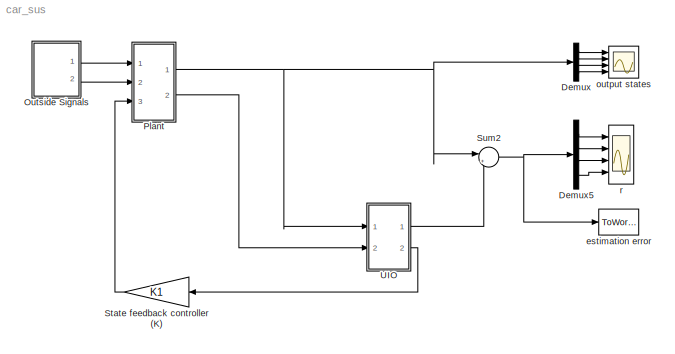
MODEL car_sus
KIND model
BLOCK [Demux] Demux
  DisplayOption = bar
  Ports = [1, 4]
  SID = 9
BLOCK [Demux] Demux5
  DisplayOption = bar
  Ports = [1, 4]
  SID = 14
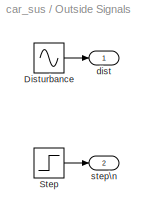
BLOCK [SubSystem] Outside Signals
  Ports = [0, 2]
  RequestExecContextInheritance = off
  SID = 15
BLOCK [Sin] Outside Signals/Disturbance
  Frequency = 100
  Ports = [0, 1]
  SID = 18
  SampleTime = 0
BLOCK [Step] Outside Signals/Step
  SID = 19
  SampleTime = 0
  Time = 0
BLOCK [Outport] Outside Signals/dist
  IconDisplay = Port number
  SID = 21
BLOCK [Outport] Outside Signals/step\n
  IconDisplay = Port number
  Port = 2
  SID = 23
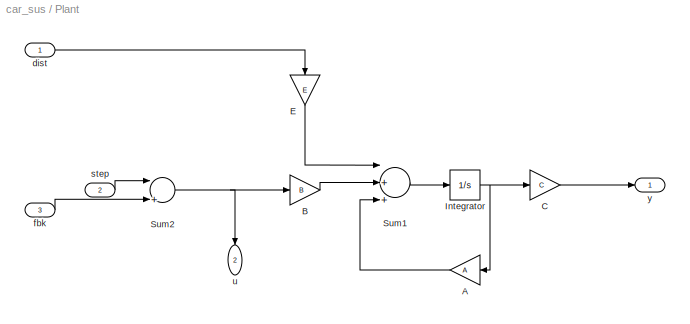
BLOCK [SubSystem] Plant
  Ports = [3, 2]
  RequestExecContextInheritance = off
  SID = 24
BLOCK [Gain] Plant/A
  Gain = A
  Multiplication = Matrix(K*u)
  OutDataTypeStr = Inherit: Inherit via internal rule
  ParamDataTypeStr = Inherit: Inherit via internal rule
  SID = 30
  SaturateOnIntegerOverflow = off
BLOCK [Gain] Plant/B
  Gain = B
  Multiplication = Matrix(K*u)
  OutDataTypeStr = Inherit: Inherit via internal rule
  ParamDataTypeStr = Inherit: Inherit via internal rule
  SID = 31
  SaturateOnIntegerOverflow = off
BLOCK [Gain] Plant/C
  Gain = C
  Multiplication = Matrix(K*u)
  OutDataTypeStr = Inherit: Inherit via internal rule
  ParamDataTypeStr = Inherit: Inherit via internal rule
  SID = 32
  SaturateOnIntegerOverflow = off
BLOCK [Gain] Plant/E
  Gain = E
  Multiplication = Matrix(K*u)
  OutDataTypeStr = Inherit: Inherit via internal rule
  ParamDataTypeStr = Inherit: Inherit via internal rule
  SID = 33
  SaturateOnIntegerOverflow = off
BLOCK [Integrator] Plant/Integrator
  InitialCondition = X_0
  Ports = [1, 1]
  SID = 34
BLOCK [Sum] Plant/Sum1
  InputSameDT = off
  Inputs = |+++
  OutDataTypeStr = Inherit: Inherit via internal rule
  Ports = [3, 1]
  SID = 35
  SaturateOnIntegerOverflow = off
BLOCK [Sum] Plant/Sum2
  InputSameDT = off
  Inputs = |+-
  OutDataTypeStr = Inherit: Inherit via internal rule
  Ports = [2, 1]
  SID = 36
  SaturateOnIntegerOverflow = off
BLOCK [Inport] Plant/dist
  IconDisplay = Port number
  SID = 26
BLOCK [Inport] Plant/fbk
  IconDisplay = Port number
  Port = 3
  SID = 29
BLOCK [Inport] Plant/step
  IconDisplay = Port number
  Port = 2
  SID = 28
BLOCK [Outport] Plant/u
  IconDisplay = Port number
  Port = 2
  SID = 40
BLOCK [Outport] Plant/y
  IconDisplay = Port number
  SID = 39
BLOCK [Gain] State feedback controller (K)
  Gain = K1
  Multiplication = Matrix(K*u)
  OutDataTypeStr = Inherit: Inherit via internal rule
  ParamDataTypeStr = Inherit: Inherit via internal rule
  SID = 41
  SaturateOnIntegerOverflow = off
BLOCK [Sum] Sum2
  IconShape = round
  InputSameDT = off
  Inputs = |+-
  OutDataTypeStr = Inherit: Inherit via internal rule
  Ports = [2, 1]
  SID = 45
  SaturateOnIntegerOverflow = off
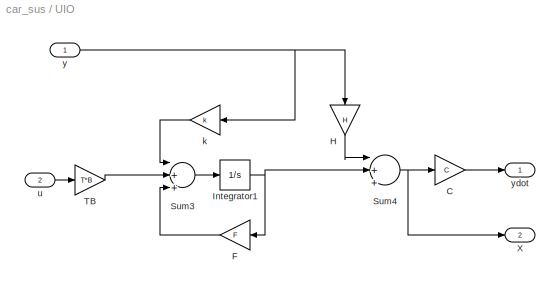
BLOCK [SubSystem] UIO
  Ports = [2, 2]
  RequestExecContextInheritance = off
  SID = 48
BLOCK [Gain] UIO/C
  Gain = C
  Multiplication = Matrix(K*u)
  OutDataTypeStr = Inherit: Inherit via internal rule
  ParamDataTypeStr = Inherit: Inherit via internal rule
  SID = 51
  SaturateOnIntegerOverflow = off
BLOCK [Gain] UIO/F
  Gain = F
  Multiplication = Matrix(K*u)
  OutDataTypeStr = Inherit: Inherit via internal rule
  ParamDataTypeStr = Inherit: Inherit via internal rule
  SID = 52
  SaturateOnIntegerOverflow = off
BLOCK [Gain] UIO/H
  Gain = H
  Multiplication = Matrix(K*u)
  OutDataTypeStr = Inherit: Inherit via internal rule
  ParamDataTypeStr = Inherit: Inherit via internal rule
  SID = 53
  SaturateOnIntegerOverflow = off
BLOCK [Integrator] UIO/Integrator1
  Ports = [1, 1]
  SID = 54
BLOCK [Sum] UIO/Sum3
  InputSameDT = off
  Inputs = |+++
  OutDataTypeStr = Inherit: Inherit via internal rule
  Ports = [3, 1]
  SID = 56
  SaturateOnIntegerOverflow = off
BLOCK [Sum] UIO/Sum4
  InputSameDT = off
  Inputs = |+++
  OutDataTypeStr = Inherit: Inherit via internal rule
  Ports = [3, 1]
  SID = 57
  SaturateOnIntegerOverflow = off
BLOCK [Gain] UIO/TB
  Gain = T*B
  Multiplication = Matrix(K*u)
  OutDataTypeStr = Inherit: Inherit via internal rule
  ParamDataTypeStr = Inherit: Inherit via internal rule
  SID = 58
  SaturateOnIntegerOverflow = off
BLOCK [Outport] UIO/X
  IconDisplay = Port number
  Port = 2
  SID = 124
BLOCK [Gain] UIO/k
  Gain = k
  Multiplication = Matrix(K*u)
  OutDataTypeStr = Inherit: Inherit via internal rule
  ParamDataTypeStr = Inherit: Inherit via internal rule
  SID = 55
  SaturateOnIntegerOverflow = off
BLOCK [Inport] UIO/u
  IconDisplay = Port number
  Port = 2
  SID = 50
BLOCK [Inport] UIO/y
  IconDisplay = Port number
  SID = 49
BLOCK [Outport] UIO/ydot
  IconDisplay = Port number
  SID = 59
BLOCK [ToWorkspace] estimation error
  FixptAsFi = on
  MaxDataPoints = inf
  Ports = [1]
  SID = 123
  SampleTime = -1
  Save2DSignal = 3-D array (concatenate along third dimension)
  VariableName = XhatErr
BLOCK [Scope] output states
  DataFormat = StructureWithTime
  Floating = off
  NumInputPorts = 4
  Ports = [4]
  SID = 104
  SampleTime = 0
  ShowLegends = off
  TimeRange = 10
  YMax = 5~5~5~5
  YMin = -5~-5~-5~-5
BLOCK [Scope] r
  DataFormat = StructureWithTime
  Floating = off
  LimitDataPoints = off
  NumInputPorts = 4
  Ports = [4]
  SID = 105
  SampleTime = 0
  SaveName = ScopeData5
  ShowLegends = off
  YMax = 5~5~5~5
  YMin = -5~-5~-5~-5
  ZoomMode = xonly
LINE Demux5:1 -> r:1
LINE Demux5:2 -> r:2
LINE Demux5:3 -> r:3
LINE Demux5:4 -> r:4
LINE Demux:1 -> output states:1
LINE Demux:2 -> output states:2
LINE Demux:3 -> output states:3
LINE Demux:4 -> output states:4
LINE Outside Signals/Disturbance:1 -> Outside Signals/dist:1
LINE Outside Signals/Step:1 -> Outside Signals/step\n:1
LINE Outside Signals:1 -> Plant:1
LINE Outside Signals:2 -> Plant:2
LINE Plant/A:1 -> Plant/Sum1:3
LINE Plant/B:1 -> Plant/Sum1:2
LINE Plant/C:1 -> Plant/y:1
LINE Plant/E:1 -> Plant/Sum1:1
NET Plant/Integrator:1 -> Plant/A:1, Plant/C:1
LINE Plant/Sum1:1 -> Plant/Integrator:1
NET Plant/Sum2:1 -> Plant/B:1, Plant/u:1
LINE Plant/dist:1 -> Plant/E:1
LINE Plant/fbk:1 -> Plant/Sum2:2
LINE Plant/step:1 -> Plant/Sum2:1
NET Plant:1 -> Demux:1, Sum2:1, UIO:1
LINE Plant:2 -> UIO:2
LINE State feedback controller (K):1 -> Plant:3
NET Sum2:1 -> Demux5:1, estimation error:1
LINE UIO/C:1 -> UIO/ydot:1
LINE UIO/F:1 -> UIO/Sum3:3
LINE UIO/H:1 -> UIO/Sum4:1
NET UIO/Integrator1:1 -> UIO/F:1, UIO/Sum4:2
LINE UIO/Sum3:1 -> UIO/Integrator1:1
NET UIO/Sum4:1 -> UIO/C:1, UIO/X:1
LINE UIO/TB:1 -> UIO/Sum3:2
LINE UIO/k:1 -> UIO/Sum3:1
LINE UIO/u:1 -> UIO/TB:1
NET UIO/y:1 -> UIO/H:1, UIO/k:1
LINE UIO:1 -> Sum2:2
LINE UIO:2 -> State feedback controller (K):1
note: NET lines group one-source signal fan-out (src -> all destinations, sorted); 1:1 wires keep LINE
